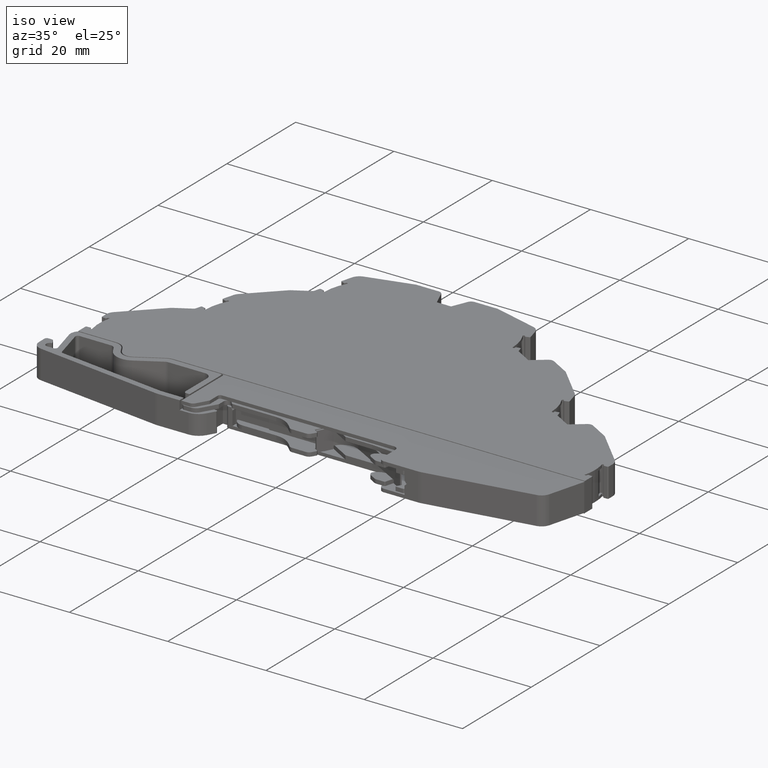
[diagram: clean part render]
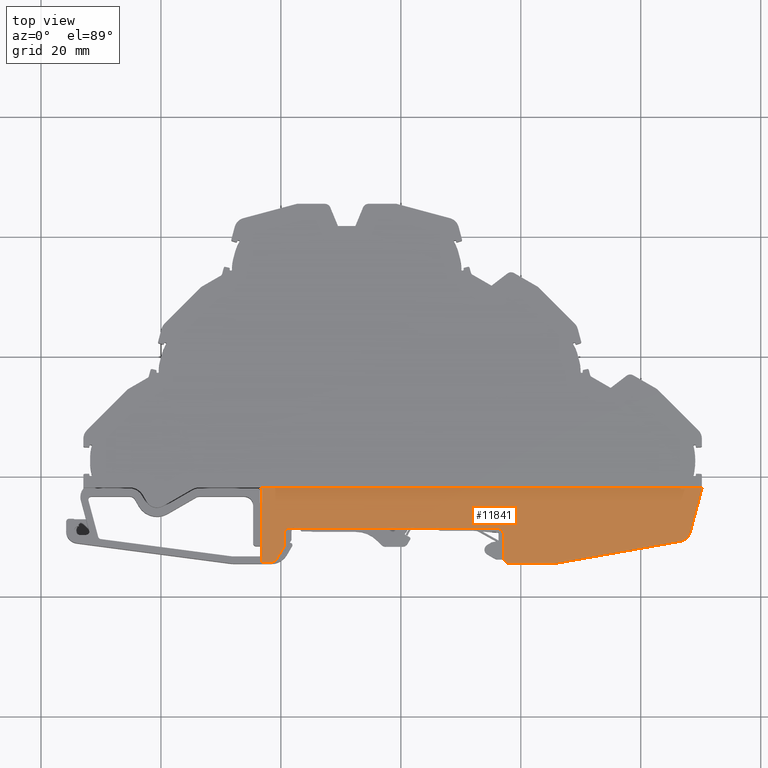
[diagram: tour spotlight — one face highlighted and labeled with its STEP entity id]
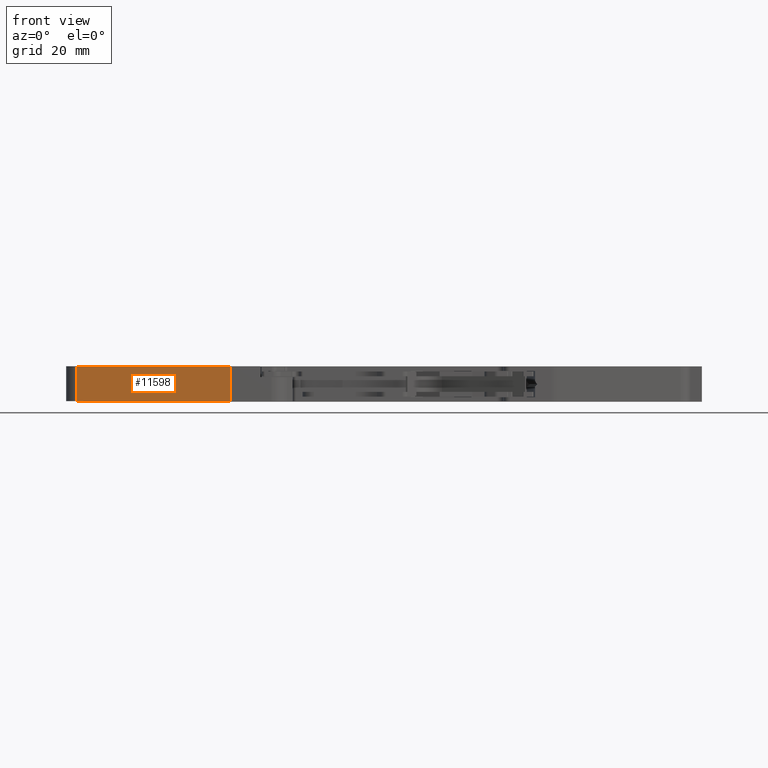
[diagram: tour spotlight — one face highlighted and labeled with its STEP entity id]
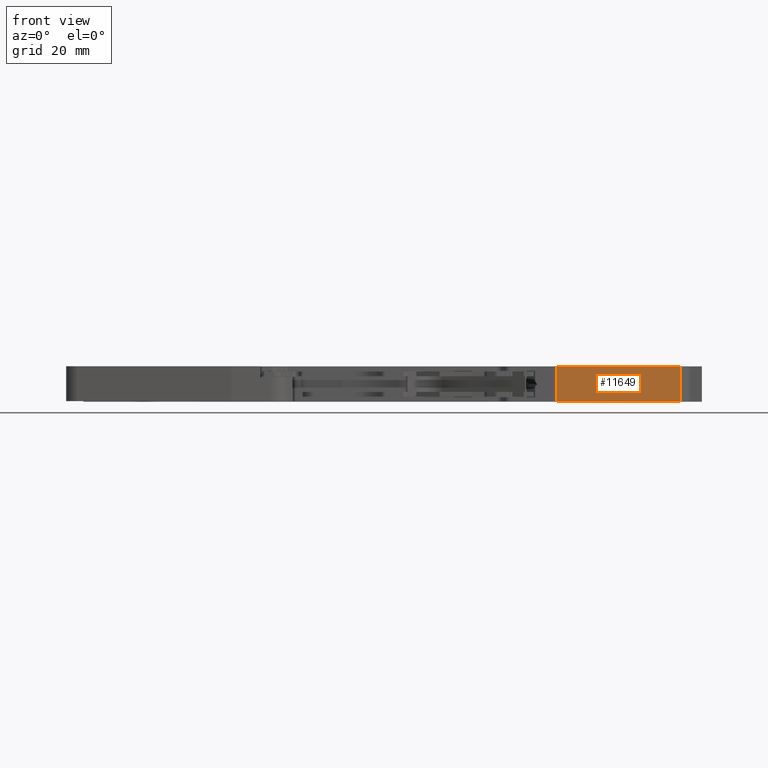
[diagram: tour spotlight — one face highlighted and labeled with its STEP entity id]
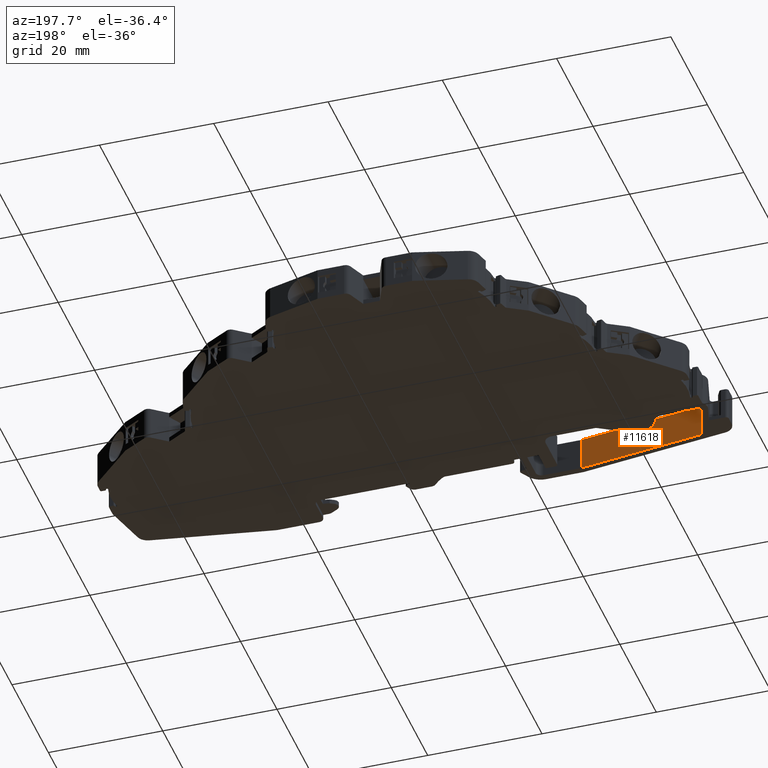
[diagram: tour spotlight — one face highlighted and labeled with its STEP entity id]
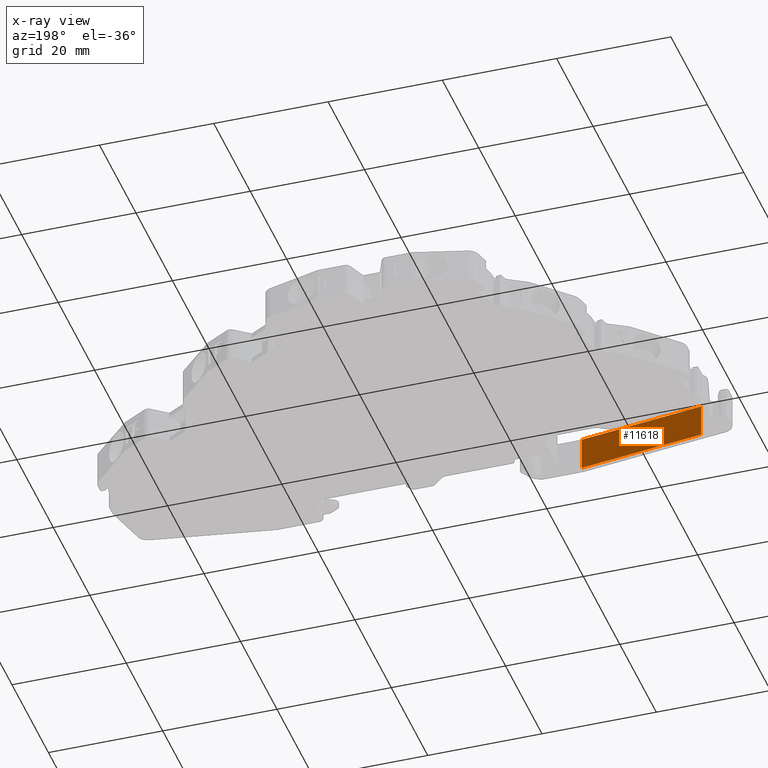
[diagram: x-ray of the same camera — body ghosted, this tour face saturated]
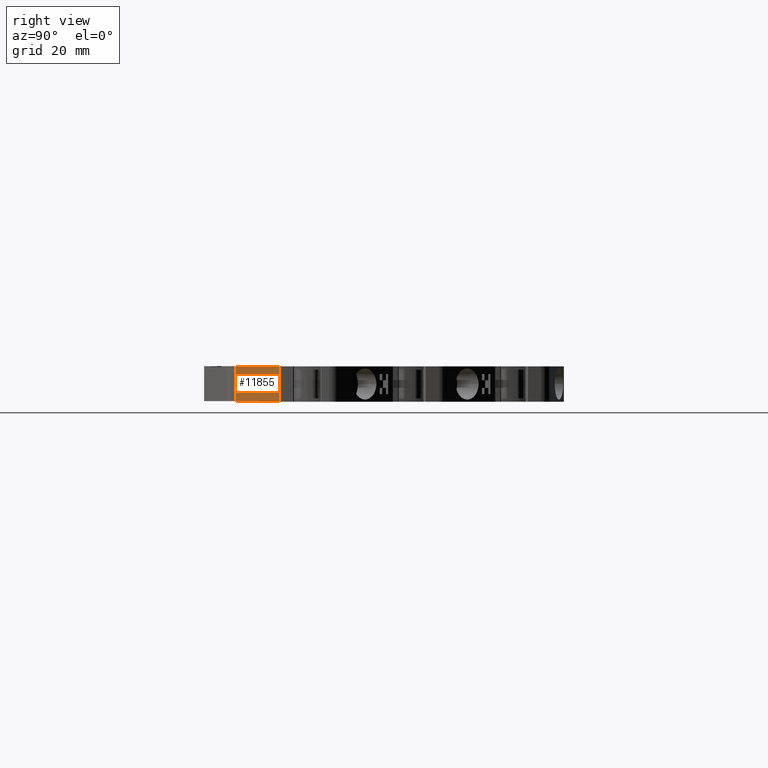
[diagram: tour spotlight — one face highlighted and labeled with its STEP entity id]
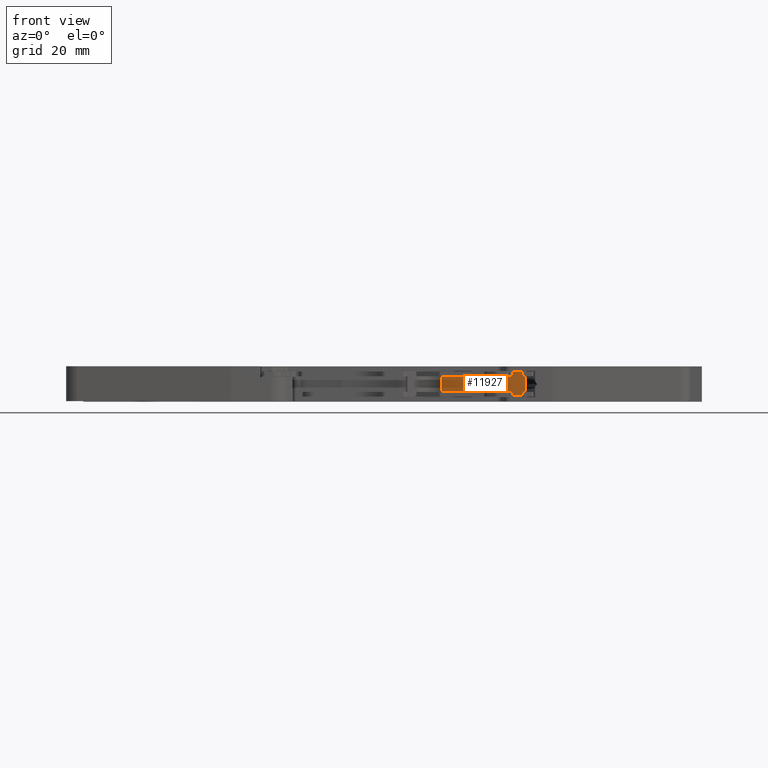
[diagram: tour spotlight — one face highlighted and labeled with its STEP entity id]
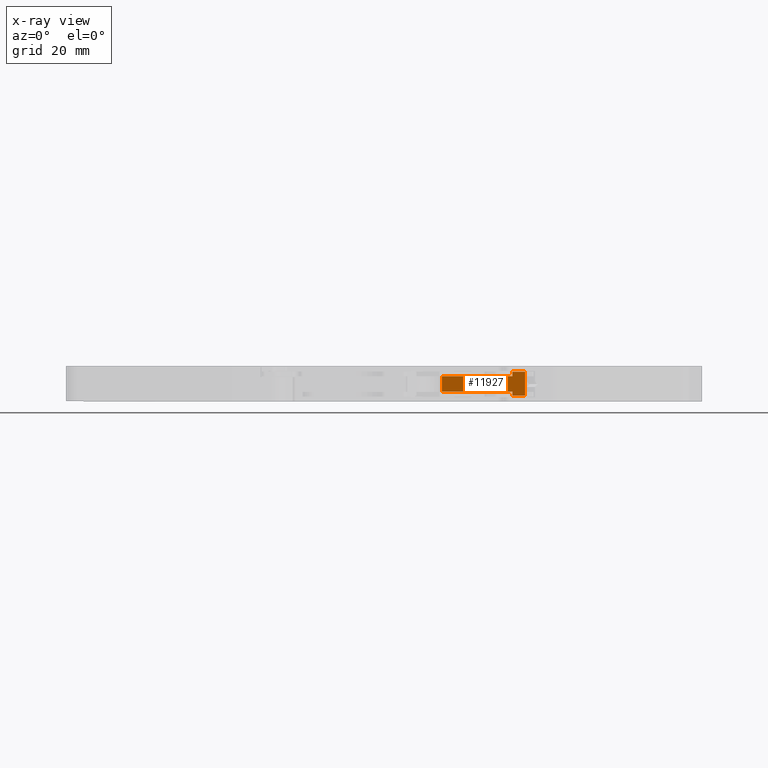
[diagram: x-ray of the same camera — body ghosted, this tour face saturated]
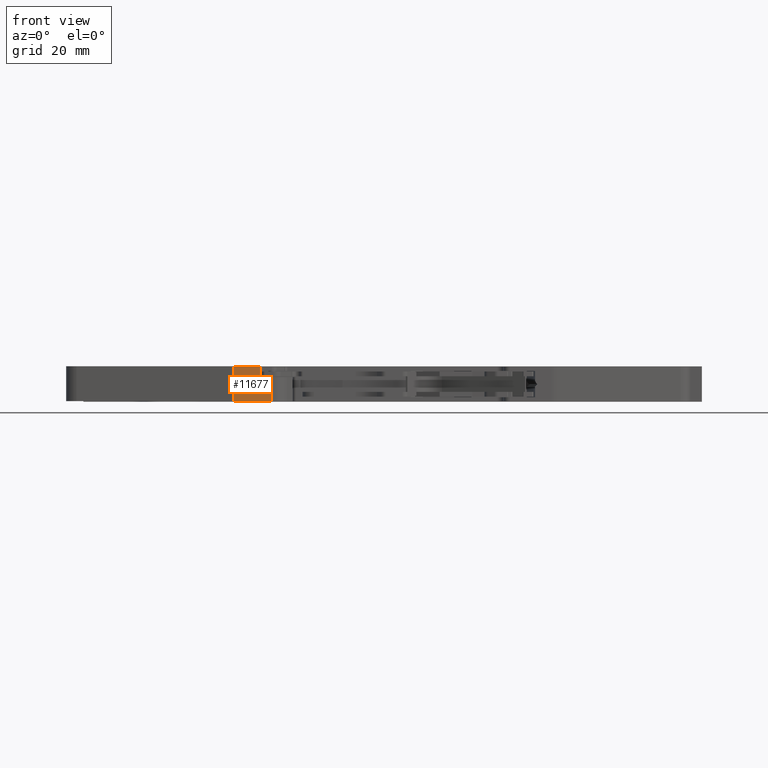
[diagram: tour spotlight — one face highlighted and labeled with its STEP entity id]
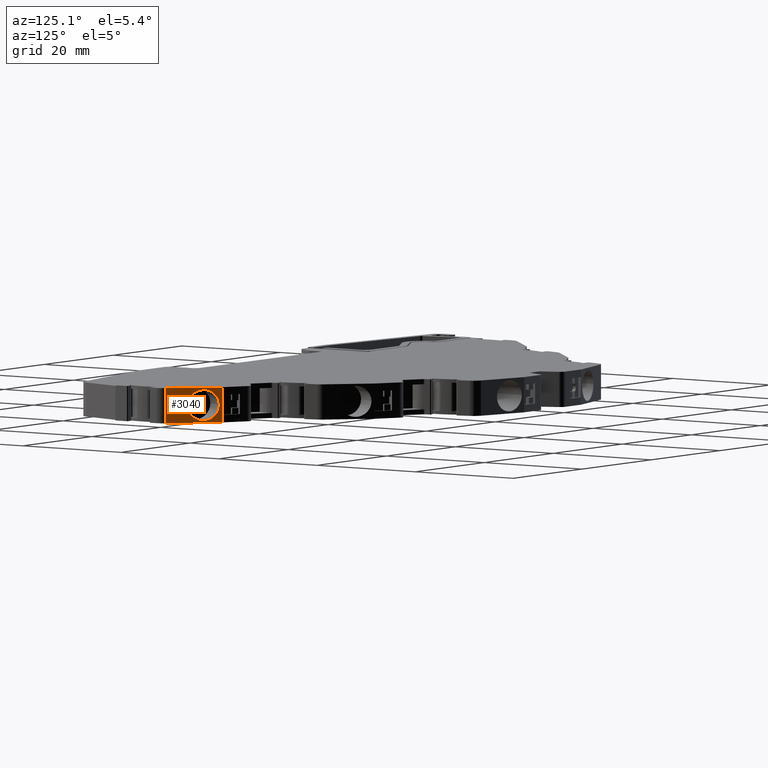
[diagram: tour spotlight — one face highlighted and labeled with its STEP entity id]
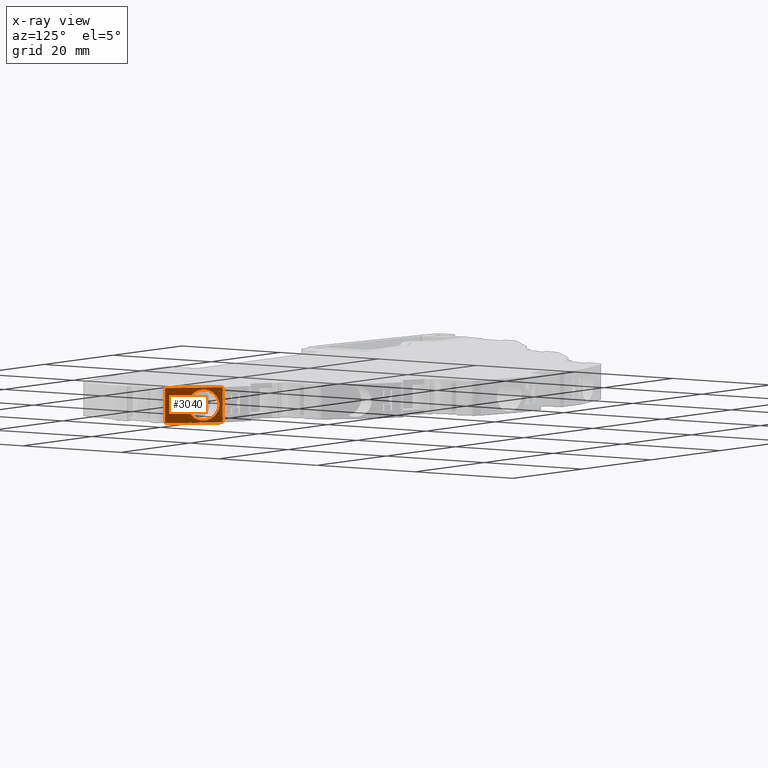
[diagram: x-ray of the same camera — body ghosted, this tour face saturated]
A machine part: a face-by-face anatomy tour. The part has 760 B-rep faces; the first image is the clean iso view, then the 8 largest visible faces are spotlighted one at a time (largest first), each with its STEP entity span.

Face 1 — top view, entity #11841. In plain terms, the highlighted planar face has unit normal (0, 0, 1).
Definition (entity closure, byte-faithful):
#105 = AXIS2_PLACEMENT_3D ( 'NONE', #25072, #25061, #25063 ) ;
#6359 = EDGE_LOOP ( 'NONE', ( #6712, #6676, #6727, #6773, #6752, #6741, #6755, #6744, #6782, #6749, #6777, #6754, #6756, #6757, #6761, #6778, #6762, #6794, #6774 ) ) ;
#6676 = ORIENTED_EDGE ( 'NONE', *, *, #10660, .T. ) ;
#6712 = ORIENTED_EDGE ( 'NONE', *, *, #10724, .T. ) ;
#6727 = ORIENTED_EDGE ( 'NONE', *, *, #10727, .T. ) ;
#6741 = ORIENTED_EDGE ( 'NONE', *, *, #10710, .T. ) ;
#6744 = ORIENTED_EDGE ( 'NONE', *, *, #10734, .F. ) ;
#6749 = ORIENTED_EDGE ( 'NONE', *, *, #10716, .F. ) ;
#6752 = ORIENTED_EDGE ( 'NONE', *, *, #10738, .T. ) ;
#6754 = ORIENTED_EDGE ( 'NONE', *, *, #10733, .F. ) ;
#6755 = ORIENTED_EDGE ( 'NONE', *, *, #10718, .F. ) ;
#6756 = ORIENTED_EDGE ( 'NONE', *, *, #10699, .F. ) ;
#6757 = ORIENTED_EDGE ( 'NONE', *, *, #10702, .F. ) ;
#6761 = ORIENTED_EDGE ( 'NONE', *, *, #10725, .F. ) ;
#6762 = ORIENTED_EDGE ( 'NONE', *, *, #10683, .F. ) ;
#6773 = ORIENTED_EDGE ( 'NONE', *, *, #10717, .T. ) ;
#6774 = ORIENTED_EDGE ( 'NONE', *, *, #10731, .T. ) ;
#6777 = ORIENTED_EDGE ( 'NONE', *, *, #10661, .F. ) ;
#6778 = ORIENTED_EDGE ( 'NONE', *, *, #10719, .F. ) ;
#6782 = ORIENTED_EDGE ( 'NONE', *, *, #10700, .F. ) ;
#6794 = ORIENTED_EDGE ( 'NONE', *, *, #10735, .F. ) ;
#7557 = VERTEX_POINT ( 'NONE', #18259 ) ;
#7564 = VERTEX_POINT ( 'NONE', #18314 ) ;
#7575 = VERTEX_POINT ( 'NONE', #18267 ) ;
#7587 = VERTEX_POINT ( 'NONE', #18322 ) ;
#7592 = VERTEX_POINT ( 'NONE', #18367 ) ;
#7610 = VERTEX_POINT ( 'NONE', #18359 ) ;
#7611 = VERTEX_POINT ( 'NONE', #18338 ) ;
#7615 = VERTEX_POINT ( 'NONE', #18366 ) ;
#7617 = VERTEX_POINT ( 'NONE', #18369 ) ;
#7620 = VERTEX_POINT ( 'NONE', #18337 ) ;
#7621 = VERTEX_POINT ( 'NONE', #18354 ) ;
#7622 = VERTEX_POINT ( 'NONE', #18346 ) ;
#7625 = VERTEX_POINT ( 'NONE', #18377 ) ;
#7638 = VERTEX_POINT ( 'NONE', #18317 ) ;
#7639 = VERTEX_POINT ( 'NONE', #18357 ) ;
#7640 = VERTEX_POINT ( 'NONE', #18358 ) ;
#7641 = VERTEX_POINT ( 'NONE', #18343 ) ;
#7644 = VERTEX_POINT ( 'NONE', #18323 ) ;
#7651 = VERTEX_POINT ( 'NONE', #18405 ) ;
#10660 = EDGE_CURVE ( 'NONE', #7615, #7641, #15715, .T. ) ;
#10661 = EDGE_CURVE ( 'NONE', #7621, #7644, #15728, .T. ) ;
#10683 = EDGE_CURVE ( 'NONE', #7638, #7620, #15803, .T. ) ;
#10699 = EDGE_CURVE ( 'NONE', #7587, #7610, #15808, .T. ) ;
#10700 = EDGE_CURVE ( 'NONE', #7639, #7611, #15818, .T. ) ;
#10702 = EDGE_CURVE ( 'NONE', #7575, #7587, #20078, .T. ) ;
#10710 = EDGE_CURVE ( 'NONE', #7622, #7640, #15788, .T. ) ;
#10716 = EDGE_CURVE ( 'NONE', #7644, #7639, #20144, .T. ) ;
#10717 = EDGE_CURVE ( 'NONE', #7651, #7625, #20148, .T. ) ;
#10718 = EDGE_CURVE ( 'NONE', #7564, #7640, #20112, .T. ) ;
#10719 = EDGE_CURVE ( 'NONE', #7620, #7557, #20134, .T. ) ;
#10724 = EDGE_CURVE ( 'NONE', #7617, #7615, #20141, .T. ) ;
#10725 = EDGE_CURVE ( 'NONE', #7557, #7575, #15759, .T. ) ;
#10727 = EDGE_CURVE ( 'NONE', #7641, #7651, #20139, .T. ) ;
#10731 = EDGE_CURVE ( 'NONE', #7592, #7617, #15860, .T. ) ;
#10733 = EDGE_CURVE ( 'NONE', #7610, #7621, #20182, .T. ) ;
#10734 = EDGE_CURVE ( 'NONE', #7611, #7564, #20183, .T. ) ;
#10735 = EDGE_CURVE ( 'NONE', #7592, #7638, #20155, .T. ) ;
#10738 = EDGE_CURVE ( 'NONE', #7625, #7622, #20195, .T. ) ;
#11841 = ADVANCED_FACE ( 'NONE', ( #25039 ), #25066, .T. ) ;
#15703 = AXIS2_PLACEMENT_3D ( 'NONE', #19969, #19946, #19967 ) ;
#15715 = CIRCLE ( 'NONE', #15754, 2.000000000000001800 ) ;
#15728 = CIRCLE ( 'NONE', #15703, 0.4999999999996673800 ) ;
#15754 = AXIS2_PLACEMENT_3D ( 'NONE', #19953, #19974, #19976 ) ;
#15758 = VECTOR ( 'NONE', #20109, 1000.000000000000100 ) ;
#15759 = CIRCLE ( 'NONE', #15782, 1.000000000000000900 ) ;
#15768 = AXIS2_PLACEMENT_3D ( 'NONE', #20081, #20096, #20077 ) ;
#15780 = VECTOR ( 'NONE', #20138, 1000.000000000000000 ) ;
#15782 = AXIS2_PLACEMENT_3D ( 'NONE', #20116, #20145, #20110 ) ;
#15787 = VECTOR ( 'NONE', #20063, 1000.000000000000100 ) ;
#15788 = CIRCLE ( 'NONE', #15794, 0.5000000000000004400 ) ;
#15794 = AXIS2_PLACEMENT_3D ( 'NONE', #20099, #20091, #20092 ) ;
#15797 = AXIS2_PLACEMENT_3D ( 'NONE', #19994, #19990, #19985 ) ;
#15798 = VECTOR ( 'NONE', #20118, 1000.000000000000000 ) ;
#15799 = VECTOR ( 'NONE', #20122, 1000.000000000000100 ) ;
#15803 = CIRCLE ( 'NONE', #15797, 1.000000000000000900 ) ;
#15808 = CIRCLE ( 'NONE', #15768, 0.5000000000002780000 ) ;
#15809 = AXIS2_PLACEMENT_3D ( 'NONE', #20104, #20073, #20066 ) ;
#15817 = VECTOR ( 'NONE', #20128, 1000.000000000000100 ) ;
#15818 = CIRCLE ( 'NONE', #15809, 0.9999999999988629100 ) ;
#15832 = AXIS2_PLACEMENT_3D ( 'NONE', #20171, #20156, #20176 ) ;
#15833 = VECTOR ( 'NONE', #20191, 1000.000000000000000 ) ;
#15845 = VECTOR ( 'NONE', #20162, 1000.000000000000000 ) ;
#15853 = VECTOR ( 'NONE', #20169, 1000.000000000000000 ) ;
#15860 = CIRCLE ( 'NONE', #15832, 4.999999998846815800 ) ;
#15861 = VECTOR ( 'NONE', #20120, 1000.000000000000200 ) ;
#15862 = VECTOR ( 'NONE', #20154, 1000.000000000000000 ) ;
#18259 = CARTESIAN_POINT ( 'NONE',  ( 277.1275590747290500, 10.27553869041482000, 5.755000000000003400 ) ) ;
#18267 = CARTESIAN_POINT ( 'NONE',  ( 276.1275589604314900, 11.27553869041491900, 5.755000000000003400 ) ) ;
#18314 = CARTESIAN_POINT ( 'NONE',  ( 236.7775514741830100, 5.703652428493939800, 5.755000000000003400 ) ) ;
#18317 = CARTESIAN_POINT ( 'NONE',  ( 278.1275590747290500, 5.453652283857850100, 5.755000000000003400 ) ) ;
#18322 = CARTESIAN_POINT ( 'NONE',  ( 241.1275487627449900, 11.27553468998899800, 5.755000000000003400 ) ) ;
#18323 = CARTESIAN_POINT ( 'NONE',  ( 240.5605615297525000, 8.343404873994749900, 5.755000000000003400 ) ) ;
#18337 = CARTESIAN_POINT ( 'NONE',  ( 277.1275590747290500, 6.453652283857839400, 5.755000000000003400 ) ) ;
#18338 = CARTESIAN_POINT ( 'NONE',  ( 238.4591495664645000, 5.703652428494120100, 5.755000000000003400 ) ) ;
#18343 = CARTESIAN_POINT ( 'NONE',  ( 308.2318994350256400, 10.63564999956065700, 5.754999999999999900 ) ) ;
#18346 = CARTESIAN_POINT ( 'NONE',  ( 236.2775535535379800, 18.15365339502465100, 5.755000000000000800 ) ) ;
#18354 = CARTESIAN_POINT ( 'NONE',  ( 240.6275488198945100, 8.593404860199450800, 5.755000000000003400 ) ) ;
#18357 = CARTESIAN_POINT ( 'NONE',  ( 239.3251749861780100, 6.203652456087311000, 5.755000000000003400 ) ) ;
#18358 = CARTESIAN_POINT ( 'NONE',  ( 236.7775535535379800, 17.65365330802234900, 5.755000000000003400 ) ) ;
#18359 = CARTESIAN_POINT ( 'NONE',  ( 240.6275488198945100, 10.77553468998793900, 5.755000000000003400 ) ) ;
#18366 = CARTESIAN_POINT ( 'NONE',  ( 306.6473301740173300, 9.183620067246197400, 5.754999999999999900 ) ) ;
#18367 = CARTESIAN_POINT ( 'NONE',  ( 285.0561968460980300, 5.453652506788160700, 5.754999999999999900 ) ) ;
#18369 = CARTESIAN_POINT ( 'NONE',  ( 285.9244377300924500, 5.529613790183530500, 5.754999999999999900 ) ) ;
#18377 = CARTESIAN_POINT ( 'NONE',  ( 310.1925644423634500, 18.15365339502484700, 5.754999999999996300 ) ) ;
#18405 = CARTESIAN_POINT ( 'NONE',  ( 310.1925644423635000, 17.95374747195260000, 5.754999999999999900 ) ) ;
#19946 = DIRECTION ( 'NONE',  ( -0.0000000000000000000, -0.0000000000000000000, -1.000000000000000000 ) ) ;
#19953 = CARTESIAN_POINT ( 'NONE',  ( 306.3000337061435500, 11.15323555342678000, 5.754999999999999900 ) ) ;
#19967 = DIRECTION ( 'NONE',  ( 1.000000000000000000, 0.0000000000000000000, 0.0000000000000000000 ) ) ;
#19969 = CARTESIAN_POINT ( 'NONE',  ( 240.1275488198950000, 8.593404860197610500, 5.755000000000003400 ) ) ;
#19974 = DIRECTION ( 'NONE',  ( 0.0000000000000000000, 0.0000000000000000000, 1.000000000000000000 ) ) ;
#19976 = DIRECTION ( 'NONE',  ( 1.000000000000000000, 0.0000000000000000000, 0.0000000000000000000 ) ) ;
#19985 = DIRECTION ( 'NONE',  ( 1.000000000000000000, 0.0000000000000000000, 0.0000000000000000000 ) ) ;
#19990 = DIRECTION ( 'NONE',  ( -0.0000000000000000000, -0.0000000000000000000, -1.000000000000000000 ) ) ;
#19994 = CARTESIAN_POINT ( 'NONE',  ( 278.1275590747290500, 6.453652283857839400, 5.755000000000003400 ) ) ;
#20063 = DIRECTION ( 'NONE',  ( -0.9999999999999934500, -1.142978428219282500E-007, 0.0000000000000000000 ) ) ;
#20066 = DIRECTION ( 'NONE',  ( 1.000000000000000000, -4.336808689946948900E-015, 0.0000000000000000000 ) ) ;
#20073 = DIRECTION ( 'NONE',  ( -0.0000000000000000000, -0.0000000000000000000, -1.000000000000000000 ) ) ;
#20077 = DIRECTION ( 'NONE',  ( 1.000000000000000000, 0.0000000000000000000, 0.0000000000000000000 ) ) ;
#20078 = LINE ( 'NONE', #20093, #15787 ) ;
#20081 = CARTESIAN_POINT ( 'NONE',  ( 241.1275488198945100, 10.77553468998874200, 5.755000000000003400 ) ) ;
#20091 = DIRECTION ( 'NONE',  ( -0.0000000000000000000, -0.0000000000000000000, -1.000000000000000000 ) ) ;
#20092 = DIRECTION ( 'NONE',  ( 1.000000000000000000, 0.0000000000000000000, 0.0000000000000000000 ) ) ;
#20093 = CARTESIAN_POINT ( 'NONE',  ( 276.1275589604314900, 11.27553869041491900, 5.755000000000003400 ) ) ;
#20096 = DIRECTION ( 'NONE',  ( 0.0000000000000000000, 0.0000000000000000000, 1.000000000000000000 ) ) ;
#20099 = CARTESIAN_POINT ( 'NONE',  ( 236.2775535535379800, 17.65365339502465100, 5.755000000000003400 ) ) ;
#20104 = CARTESIAN_POINT ( 'NONE',  ( 238.4591495664630000, 6.703652428492859800, 5.755000000000003400 ) ) ;
#20109 = DIRECTION ( 'NONE',  ( -0.4999999724063362000, -0.8660254197156472800, 0.0000000000000000000 ) ) ;
#20110 = DIRECTION ( 'NONE',  ( 1.000000000000000000, 0.0000000000000000000, 0.0000000000000000000 ) ) ;
#20112 = LINE ( 'NONE', #20149, #15799 ) ;
#20116 = CARTESIAN_POINT ( 'NONE',  ( 276.1275590747290500, 10.27553869041494000, 5.755000000000003400 ) ) ;
#20118 = DIRECTION ( 'NONE',  ( 0.0000000000000000000, 1.000000000000000000, 0.0000000000000000000 ) ) ;
#20120 = DIRECTION ( 'NONE',  ( 0.2587927769330645200, 0.9659328644410402100, 0.0000000000000000000 ) ) ;
#20122 = DIRECTION ( 'NONE',  ( 1.740045664224489600E-007, 0.9999999999999849000, 0.0000000000000000000 ) ) ;
#20124 = CARTESIAN_POINT ( 'NONE',  ( 310.1925644423635000, 17.95374747195260000, 5.754999999999999900 ) ) ;
#20128 = DIRECTION ( 'NONE',  ( 0.9848077430902924000, 0.1736482339369004000, 0.0000000000000000000 ) ) ;
#20131 = CARTESIAN_POINT ( 'NONE',  ( 277.1275590747290500, 6.453652283857839400, 5.755000000000003400 ) ) ;
#20132 = CARTESIAN_POINT ( 'NONE',  ( 305.5295232437430300, 8.986520480360878700, 5.754999999999999900 ) ) ;
#20134 = LINE ( 'NONE', #20131, #15780 ) ;
#20136 = CARTESIAN_POINT ( 'NONE',  ( 310.1925644423635000, -4.273463303793795000, 5.755000000000000800 ) ) ;
#20138 = DIRECTION ( 'NONE',  ( 0.0000000000000000000, 1.000000000000000000, 0.0000000000000000000 ) ) ;
#20139 = LINE ( 'NONE', #20124, #15861 ) ;
#20141 = LINE ( 'NONE', #20132, #15817 ) ;
#20144 = LINE ( 'NONE', #20147, #15758 ) ;
#20145 = DIRECTION ( 'NONE',  ( 0.0000000000000000000, 0.0000000000000000000, 1.000000000000000000 ) ) ;
#20147 = CARTESIAN_POINT ( 'NONE',  ( 240.5605615297525000, 8.343404873994749900, 5.755000000000003400 ) ) ;
#20148 = LINE ( 'NONE', #20136, #15798 ) ;
#20149 = CARTESIAN_POINT ( 'NONE',  ( 236.7775514741830100, 5.703652428493939800, 5.755000000000003400 ) ) ;
#20153 = CARTESIAN_POINT ( 'NONE',  ( 240.6275488198945100, 10.77553468998793900, 5.755000000000003400 ) ) ;
#20154 = DIRECTION ( 'NONE',  ( -1.271948865586938100E-014, -1.000000000000000000, 0.0000000000000000000 ) ) ;
#20155 = LINE ( 'NONE', #20166, #15833 ) ;
#20156 = DIRECTION ( 'NONE',  ( 0.0000000000000000000, 0.0000000000000000000, 1.000000000000000000 ) ) ;
#20160 = CARTESIAN_POINT ( 'NONE',  ( 238.4591495664645000, 5.703652428494120100, 5.755000000000003400 ) ) ;
#20162 = DIRECTION ( 'NONE',  ( -1.000000000000000000, -7.546894870103224200E-016, 0.0000000000000000000 ) ) ;
#20166 = CARTESIAN_POINT ( 'NONE',  ( 282.1775819742595100, 5.453652299454519800, 5.755000000000003400 ) ) ;
#20169 = DIRECTION ( 'NONE',  ( -1.000000000000000000, -1.067697927273589900E-013, 0.0000000000000000000 ) ) ;
#20171 = CARTESIAN_POINT ( 'NONE',  ( 285.0561965604079500, 10.45365250563500000, 5.754999999999999900 ) ) ;
#20176 = DIRECTION ( 'NONE',  ( 1.000000000000000000, 0.0000000000000000000, 0.0000000000000000000 ) ) ;
#20181 = CARTESIAN_POINT ( 'NONE',  ( 259.6925597848061800, 18.15365339502481100, 5.754999999999996300 ) ) ;
#20182 = LINE ( 'NONE', #20153, #15862 ) ;
#20183 = LINE ( 'NONE', #20160, #15853 ) ;
#20191 = DIRECTION ( 'NONE',  ( -1.000000000000000000, -3.851004590712635100E-009, 0.0000000000000000000 ) ) ;
#20195 = LINE ( 'NONE', #20181, #15845 ) ;
#25039 = FACE_OUTER_BOUND ( 'NONE', #6359, .T. ) ;
#25061 = DIRECTION ( 'NONE',  ( 0.0000000000000000000, 0.0000000000000000000, 1.000000000000000000 ) ) ;
#25063 = DIRECTION ( 'NONE',  ( 1.000000000000000000, 0.0000000000000000000, 0.0000000000000000000 ) ) ;
#25066 = PLANE ( 'NONE',  #105 ) ;
#25072 = CARTESIAN_POINT ( 'NONE',  ( 230.9558932644780200, -4.273463303793795000, 5.755000000000000800 ) ) ;

Face 2 — front view, entity #11598. In plain terms, the highlighted planar face has unit normal (-0.1305, -0.9914, 0).
Definition (entity closure, byte-faithful):
#4828 = EDGE_LOOP ( 'NONE', ( #12533, #12507, #12574, #12561 ) ) ;
#7473 = VERTEX_POINT ( 'NONE', #18220 ) ;
#7594 = VERTEX_POINT ( 'NONE', #18364 ) ;
#7838 = VERTEX_POINT ( 'NONE', #18623 ) ;
#7858 = VERTEX_POINT ( 'NONE', #18632 ) ;
#10646 = EDGE_CURVE ( 'NONE', #7473, #7594, #19891, .T. ) ;
#10971 = EDGE_CURVE ( 'NONE', #7858, #7838, #22024, .T. ) ;
#11375 = EDGE_CURVE ( 'NONE', #7594, #7838, #23218, .T. ) ;
#11398 = EDGE_CURVE ( 'NONE', #7858, #7473, #23286, .T. ) ;
#11598 = ADVANCED_FACE ( 'NONE', ( #24037 ), #24032, .T. ) ;
#12507 = ORIENTED_EDGE ( 'NONE', *, *, #11398, .T. ) ;
#12533 = ORIENTED_EDGE ( 'NONE', *, *, #10971, .F. ) ;
#12561 = ORIENTED_EDGE ( 'NONE', *, *, #11375, .T. ) ;
#12574 = ORIENTED_EDGE ( 'NONE', *, *, #10646, .T. ) ;
#15744 = VECTOR ( 'NONE', #19931, 1000.000000000000100 ) ;
#18220 = CARTESIAN_POINT ( 'NONE',  ( 205.9276064086141400, 8.863850596621729100, 0.05499999999999949400 ) ) ;
#18364 = CARTESIAN_POINT ( 'NONE',  ( 231.5576974045550000, 5.489585722834148900, 0.05499999999999949400 ) ) ;
#18623 = CARTESIAN_POINT ( 'NONE',  ( 231.5576974045550000, 5.489585722834148900, 5.864999999999994900 ) ) ;
#18632 = CARTESIAN_POINT ( 'NONE',  ( 205.9276064086141400, 8.863850596621729100, 5.864999999999994900 ) ) ;
#19891 = LINE ( 'NONE', #19917, #15744 ) ;
#19917 = CARTESIAN_POINT ( 'NONE',  ( 266.6560009584955000, 0.8688072468486799400, 0.05499999999999949400 ) ) ;
#19931 = DIRECTION ( 'NONE',  ( 0.9914448644735828200, -0.1305261686749406000, 0.0000000000000000000 ) ) ;
#20640 = VECTOR ( 'NONE', #22089, 1000.000000000000100 ) ;
#21150 = VECTOR ( 'NONE', #23299, 1000.000000000000000 ) ;
#21167 = VECTOR ( 'NONE', #23266, 1000.000000000000000 ) ;
#21392 = AXIS2_PLACEMENT_3D ( 'NONE', #24053, #24018, #24039 ) ;
#22024 = LINE ( 'NONE', #22030, #20640 ) ;
#22030 = CARTESIAN_POINT ( 'NONE',  ( 265.6091454494504100, 1.006628363935682600, 5.864999999999995800 ) ) ;
#22089 = DIRECTION ( 'NONE',  ( 0.9914448644735828200, -0.1305261686749406000, 0.0000000000000000000 ) ) ;
#23218 = LINE ( 'NONE', #23261, #21167 ) ;
#23261 = CARTESIAN_POINT ( 'NONE',  ( 231.5576974045550000, 5.489585722834148900, -105.5397785478540100 ) ) ;
#23266 = DIRECTION ( 'NONE',  ( 0.0000000000000000000, 0.0000000000000000000, 1.000000000000000000 ) ) ;
#23286 = LINE ( 'NONE', #23329, #21150 ) ;
#23299 = DIRECTION ( 'NONE',  ( 0.0000000000000000000, 0.0000000000000000000, -1.000000000000000000 ) ) ;
#23329 = CARTESIAN_POINT ( 'NONE',  ( 205.9276064086141400, 8.863850596621729100, -105.5397785478540100 ) ) ;
#24018 = DIRECTION ( 'NONE',  ( -0.1305261686749408000, -0.9914448644735828200, 0.0000000000000000000 ) ) ;
#24032 = PLANE ( 'NONE',  #21392 ) ;
#24037 = FACE_OUTER_BOUND ( 'NONE', #4828, .T. ) ;
#24039 = DIRECTION ( 'NONE',  ( 0.9914448644735827100, -0.1305261686749407700, 0.0000000000000000000 ) ) ;
#24053 = CARTESIAN_POINT ( 'NONE',  ( 266.6560009584955000, 0.8688072468486799400, -105.5397785478540100 ) ) ;

Face 3 — front view, entity #11649. In plain terms, the highlighted planar face has unit normal (-0.1736, 0.9848, 0).
Definition (entity closure, byte-faithful):
#4938 = EDGE_LOOP ( 'NONE', ( #12617, #12620, #12639, #12703 ) ) ;
#7554 = VERTEX_POINT ( 'NONE', #18285 ) ;
#7570 = VERTEX_POINT ( 'NONE', #18251 ) ;
#7615 = VERTEX_POINT ( 'NONE', #18366 ) ;
#7617 = VERTEX_POINT ( 'NONE', #18369 ) ;
#10663 = EDGE_CURVE ( 'NONE', #7554, #7570, #19965, .T. ) ;
#10724 = EDGE_CURVE ( 'NONE', #7617, #7615, #20141, .T. ) ;
#11456 = EDGE_CURVE ( 'NONE', #7570, #7615, #23553, .T. ) ;
#11476 = EDGE_CURVE ( 'NONE', #7617, #7554, #23605, .T. ) ;
#11649 = ADVANCED_FACE ( 'NONE', ( #24220 ), #24219, .F. ) ;
#12617 = ORIENTED_EDGE ( 'NONE', *, *, #10663, .T. ) ;
#12620 = ORIENTED_EDGE ( 'NONE', *, *, #11456, .T. ) ;
#12639 = ORIENTED_EDGE ( 'NONE', *, *, #10724, .F. ) ;
#12703 = ORIENTED_EDGE ( 'NONE', *, *, #11476, .T. ) ;
#15729 = VECTOR ( 'NONE', #19942, 1000.000000000000100 ) ;
#15817 = VECTOR ( 'NONE', #20128, 1000.000000000000100 ) ;
#18251 = CARTESIAN_POINT ( 'NONE',  ( 306.6473301740173300, 9.183620067246197400, 0.05499999999999949400 ) ) ;
#18285 = CARTESIAN_POINT ( 'NONE',  ( 285.9244377300924500, 5.529613790183530500, 0.05499999999999949400 ) ) ;
#18366 = CARTESIAN_POINT ( 'NONE',  ( 306.6473301740173300, 9.183620067246197400, 5.754999999999999900 ) ) ;
#18369 = CARTESIAN_POINT ( 'NONE',  ( 285.9244377300924500, 5.529613790183530500, 5.754999999999999900 ) ) ;
#19940 = CARTESIAN_POINT ( 'NONE',  ( 8.708948686352020000, -43.35097273053618500, 0.05499999999999898700 ) ) ;
#19942 = DIRECTION ( 'NONE',  ( 0.9848077430902924000, 0.1736482339369004000, 0.0000000000000000000 ) ) ;
#19965 = LINE ( 'NONE', #19940, #15729 ) ;
#20128 = DIRECTION ( 'NONE',  ( 0.9848077430902924000, 0.1736482339369004000, 0.0000000000000000000 ) ) ;
#20132 = CARTESIAN_POINT ( 'NONE',  ( 305.5295232437430300, 8.986520480360878700, 5.754999999999999900 ) ) ;
#20141 = LINE ( 'NONE', #20132, #15817 ) ;
#21244 = VECTOR ( 'NONE', #23561, 1000.000000000000000 ) ;
#21311 = VECTOR ( 'NONE', #23598, 1000.000000000000000 ) ;
#21472 = AXIS2_PLACEMENT_3D ( 'NONE', #24275, #24306, #24313 ) ;
#23530 = CARTESIAN_POINT ( 'NONE',  ( 306.6473301740173300, 9.183620067246197400, 35.49247827905775000 ) ) ;
#23553 = LINE ( 'NONE', #23530, #21244 ) ;
#23561 = DIRECTION ( 'NONE',  ( -0.0000000000000000000, -0.0000000000000000000, 1.000000000000000000 ) ) ;
#23590 = CARTESIAN_POINT ( 'NONE',  ( 285.9244377300924500, 5.529613790183530500, 35.49247827905775000 ) ) ;
#23598 = DIRECTION ( 'NONE',  ( 0.0000000000000000000, 0.0000000000000000000, -1.000000000000000000 ) ) ;
#23605 = LINE ( 'NONE', #23590, #21311 ) ;
#24219 = PLANE ( 'NONE',  #21472 ) ;
#24220 = FACE_OUTER_BOUND ( 'NONE', #4938, .T. ) ;
#24275 = CARTESIAN_POINT ( 'NONE',  ( 305.5295232437430300, 8.986520480360878700, 35.49247827905775000 ) ) ;
#24306 = DIRECTION ( 'NONE',  ( -0.1736482339369004300, 0.9848077430902925100, 0.0000000000000000000 ) ) ;
#24313 = DIRECTION ( 'NONE',  ( -0.9848077430902924000, -0.1736482339369004000, 0.0000000000000000000 ) ) ;

Face 4 — auxiliary view, entity #11618. An x-ray twin of the same camera follows (body ghosted, this face saturated) — the face is partly hidden behind the body. In plain terms, the highlighted planar face has unit normal (0.1305, 0.9914, 0).
Definition (entity closure, byte-faithful):
#4887 = EDGE_LOOP ( 'NONE', ( #12508, #12577, #12495, #12572 ) ) ;
#7560 = VERTEX_POINT ( 'NONE', #18298 ) ;
#7616 = VERTEX_POINT ( 'NONE', #18368 ) ;
#7849 = VERTEX_POINT ( 'NONE', #18606 ) ;
#7873 = VERTEX_POINT ( 'NONE', #18584 ) ;
#10654 = EDGE_CURVE ( 'NONE', #7560, #7616, #19907, .T. ) ;
#10941 = EDGE_CURVE ( 'NONE', #7849, #7873, #21947, .T. ) ;
#11371 = EDGE_CURVE ( 'NONE', #7560, #7873, #23212, .T. ) ;
#11394 = EDGE_CURVE ( 'NONE', #7616, #7849, #23314, .T. ) ;
#11618 = ADVANCED_FACE ( 'NONE', ( #24155 ), #24128, .T. ) ;
#12495 = ORIENTED_EDGE ( 'NONE', *, *, #10941, .F. ) ;
#12508 = ORIENTED_EDGE ( 'NONE', *, *, #10654, .F. ) ;
#12572 = ORIENTED_EDGE ( 'NONE', *, *, #11394, .F. ) ;
#12577 = ORIENTED_EDGE ( 'NONE', *, *, #11371, .T. ) ;
#15756 = VECTOR ( 'NONE', #19892, 999.9999999999998900 ) ;
#18298 = CARTESIAN_POINT ( 'NONE',  ( 209.9609562340940600, 9.543205107083123200, 0.05499999999999949400 ) ) ;
#18368 = CARTESIAN_POINT ( 'NONE',  ( 231.7143380641940100, 6.679318845271971000, 0.05499999999999949400 ) ) ;
#18584 = CARTESIAN_POINT ( 'NONE',  ( 209.9609562340940600, 9.543205107083123200, 5.864999999999994900 ) ) ;
#18606 = CARTESIAN_POINT ( 'NONE',  ( 231.7143380641940100, 6.679318845271971000, 5.864999999999994900 ) ) ;
#19892 = DIRECTION ( 'NONE',  ( 0.9914448660161236900, -0.1305261569581771800, 0.0000000000000000000 ) ) ;
#19899 = CARTESIAN_POINT ( 'NONE',  ( 5.858957915854428900, 36.41373556331820500, 0.05499999999999898700 ) ) ;
#19907 = LINE ( 'NONE', #19899, #15756 ) ;
#20598 = VECTOR ( 'NONE', #21962, 999.9999999999998900 ) ;
#21142 = VECTOR ( 'NONE', #23259, 1000.000000000000000 ) ;
#21195 = VECTOR ( 'NONE', #23306, 1000.000000000000000 ) ;
#21431 = AXIS2_PLACEMENT_3D ( 'NONE', #24112, #24146, #24117 ) ;
#21947 = LINE ( 'NONE', #21954, #20598 ) ;
#21954 = CARTESIAN_POINT ( 'NONE',  ( 265.7657761329153300, 2.196363209151605700, 5.864999999999995800 ) ) ;
#21962 = DIRECTION ( 'NONE',  ( -0.9914448660161236900, 0.1305261569581771800, 0.0000000000000000000 ) ) ;
#23212 = LINE ( 'NONE', #23213, #21142 ) ;
#23213 = CARTESIAN_POINT ( 'NONE',  ( 209.9609562340940600, 9.543205107083123200, -29.19000000000000800 ) ) ;
#23259 = DIRECTION ( 'NONE',  ( 0.0000000000000000000, 0.0000000000000000000, 1.000000000000000000 ) ) ;
#23306 = DIRECTION ( 'NONE',  ( 0.0000000000000000000, 0.0000000000000000000, 1.000000000000000000 ) ) ;
#23314 = LINE ( 'NONE', #23320, #21195 ) ;
#23320 = CARTESIAN_POINT ( 'NONE',  ( 231.7143380641940100, 6.679318845271971000, -29.19000000000000800 ) ) ;
#24112 = CARTESIAN_POINT ( 'NONE',  ( 267.5459603035130300, 1.961997581338555100, -29.19000000000000800 ) ) ;
#24117 = DIRECTION ( 'NONE',  ( -0.9914448660161235800, 0.1305261569581771500, 0.0000000000000000000 ) ) ;
#24128 = PLANE ( 'NONE',  #21431 ) ;
#24146 = DIRECTION ( 'NONE',  ( 0.1305261569581771500, 0.9914448660161235800, 0.0000000000000000000 ) ) ;
#24155 = FACE_OUTER_BOUND ( 'NONE', #4887, .T. ) ;

Face 5 — right view, entity #11855. In plain terms, the highlighted planar face has unit normal (-0.9659, 0.2588, 0).
Definition (entity closure, byte-faithful):
#141 = AXIS2_PLACEMENT_3D ( 'NONE', #25092, #25115, #25093 ) ;
#6322 = EDGE_LOOP ( 'NONE', ( #6784, #6701, #6702, #6781, #6706, #6673 ) ) ;
#6673 = ORIENTED_EDGE ( 'NONE', *, *, #10697, .F. ) ;
#6701 = ORIENTED_EDGE ( 'NONE', *, *, #10722, .T. ) ;
#6702 = ORIENTED_EDGE ( 'NONE', *, *, #10664, .T. ) ;
#6706 = ORIENTED_EDGE ( 'NONE', *, *, #10657, .F. ) ;
#6781 = ORIENTED_EDGE ( 'NONE', *, *, #10682, .F. ) ;
#6784 = ORIENTED_EDGE ( 'NONE', *, *, #10727, .F. ) ;
#7538 = VERTEX_POINT ( 'NONE', #18290 ) ;
#7567 = VERTEX_POINT ( 'NONE', #18302 ) ;
#7612 = VERTEX_POINT ( 'NONE', #18341 ) ;
#7628 = VERTEX_POINT ( 'NONE', #18339 ) ;
#7641 = VERTEX_POINT ( 'NONE', #18343 ) ;
#7651 = VERTEX_POINT ( 'NONE', #18405 ) ;
#10657 = EDGE_CURVE ( 'NONE', #7612, #7628, #19893, .T. ) ;
#10664 = EDGE_CURVE ( 'NONE', #7567, #7538, #19936, .T. ) ;
#10682 = EDGE_CURVE ( 'NONE', #7628, #7538, #19989, .T. ) ;
#10697 = EDGE_CURVE ( 'NONE', #7651, #7612, #20038, .T. ) ;
#10722 = EDGE_CURVE ( 'NONE', #7641, #7567, #20107, .T. ) ;
#10727 = EDGE_CURVE ( 'NONE', #7641, #7651, #20139, .T. ) ;
#11855 = ADVANCED_FACE ( 'NONE', ( #25089 ), #25090, .F. ) ;
#15711 = VECTOR ( 'NONE', #19964, 1000.000000000000200 ) ;
#15720 = VECTOR ( 'NONE', #20009, 1000.000000000000000 ) ;
#15730 = VECTOR ( 'NONE', #19949, 1000.000000000000200 ) ;
#15770 = VECTOR ( 'NONE', #20020, 1000.000000000000000 ) ;
#15815 = VECTOR ( 'NONE', #20123, 1000.000000000000000 ) ;
#15861 = VECTOR ( 'NONE', #20120, 1000.000000000000200 ) ;
#18290 = CARTESIAN_POINT ( 'NONE',  ( 310.1925392372684800, 17.95365339502485100, 0.05499999999999898000 ) ) ;
#18302 = CARTESIAN_POINT ( 'NONE',  ( 308.2318994350256400, 10.63564999956065700, 0.05499999999999949400 ) ) ;
#18339 = CARTESIAN_POINT ( 'NONE',  ( 310.1925392372684800, 17.95365339502485100, -0.04500000000000388400 ) ) ;
#18341 = CARTESIAN_POINT ( 'NONE',  ( 310.1925644423635000, 17.95374747195260000, -0.04500000000000337100 ) ) ;
#18343 = CARTESIAN_POINT ( 'NONE',  ( 308.2318994350256400, 10.63564999956065700, 5.754999999999999900 ) ) ;
#18405 = CARTESIAN_POINT ( 'NONE',  ( 310.1925644423635000, 17.95374747195260000, 5.754999999999999900 ) ) ;
#19893 = LINE ( 'NONE', #19904, #15711 ) ;
#19904 = CARTESIAN_POINT ( 'NONE',  ( 312.4056949663813600, 26.21416158312163300, -0.04500000000000387700 ) ) ;
#19936 = LINE ( 'NONE', #19958, #15730 ) ;
#19949 = DIRECTION ( 'NONE',  ( 0.2587927769330645200, 0.9659328644410402100, 0.0000000000000000000 ) ) ;
#19958 = CARTESIAN_POINT ( 'NONE',  ( 285.0011332220738600, -76.07218171492525000, 0.05499999999999898700 ) ) ;
#19964 = DIRECTION ( 'NONE',  ( -0.2587927769330645200, -0.9659328644410402100, 0.0000000000000000000 ) ) ;
#19989 = LINE ( 'NONE', #20010, #15720 ) ;
#20009 = DIRECTION ( 'NONE',  ( 0.0000000000000000000, 0.0000000000000000000, 1.000000000000000000 ) ) ;
#20010 = CARTESIAN_POINT ( 'NONE',  ( 310.1925392372684800, 17.95365339502485100, 0.1599999999999934800 ) ) ;
#20020 = DIRECTION ( 'NONE',  ( 0.0000000000000000000, 0.0000000000000000000, -1.000000000000000000 ) ) ;
#20038 = LINE ( 'NONE', #20049, #15770 ) ;
#20049 = CARTESIAN_POINT ( 'NONE',  ( 310.1925644423635000, 17.95374747195260000, 35.49247827905775000 ) ) ;
#20107 = LINE ( 'NONE', #20108, #15815 ) ;
#20108 = CARTESIAN_POINT ( 'NONE',  ( 308.2318994350256400, 10.63564999956065700, 35.49247827905775000 ) ) ;
#20120 = DIRECTION ( 'NONE',  ( 0.2587927769330645200, 0.9659328644410402100, 0.0000000000000000000 ) ) ;
#20123 = DIRECTION ( 'NONE',  ( 0.0000000000000000000, 0.0000000000000000000, -1.000000000000000000 ) ) ;
#20124 = CARTESIAN_POINT ( 'NONE',  ( 310.1925644423635000, 17.95374747195260000, 5.754999999999999900 ) ) ;
#20139 = LINE ( 'NONE', #20124, #15861 ) ;
#25089 = FACE_OUTER_BOUND ( 'NONE', #6322, .T. ) ;
#25090 = PLANE ( 'NONE',  #141 ) ;
#25092 = CARTESIAN_POINT ( 'NONE',  ( 310.1925644423635000, 17.95374747195260000, 35.49247827905775000 ) ) ;
#25093 = DIRECTION ( 'NONE',  ( -0.2587927769330646300, -0.9659328644410403200, 0.0000000000000000000 ) ) ;
#25115 = DIRECTION ( 'NONE',  ( -0.9659328644410403200, 0.2587927769330646300, 0.0000000000000000000 ) ) ;

Face 6 — front view, entity #11927. An x-ray twin of the same camera follows (body ghosted, this face saturated) — the face is partly hidden behind the body. In plain terms, the highlighted planar face has unit normal (0.4848, 0.8746, 0).
Definition (entity closure, byte-faithful):
#169 = AXIS2_PLACEMENT_3D ( 'NONE', #25459, #25462, #25463 ) ;
#4999 = EDGE_CURVE ( 'NONE', #8014, #7988, #16265, .T. ) ;
#5004 = EDGE_CURVE ( 'NONE', #8010, #7997, #16263, .T. ) ;
#5012 = EDGE_CURVE ( 'NONE', #7994, #7988, #16291, .T. ) ;
#5038 = EDGE_CURVE ( 'NONE', #7987, #7980, #16375, .T. ) ;
#5043 = EDGE_CURVE ( 'NONE', #7968, #7341, #16409, .T. ) ;
#5046 = EDGE_CURVE ( 'NONE', #7980, #7994, #16401, .T. ) ;
#5058 = EDGE_CURVE ( 'NONE', #7902, #7968, #16447, .T. ) ;
#5061 = EDGE_CURVE ( 'NONE', #7315, #8026, #16452, .T. ) ;
#5064 = EDGE_CURVE ( 'NONE', #8010, #7987, #16481, .T. ) ;
#5079 = EDGE_CURVE ( 'NONE', #8014, #8015, #16530, .T. ) ;
#5080 = EDGE_CURVE ( 'NONE', #8015, #7920, #16479, .T. ) ;
#5087 = EDGE_CURVE ( 'NONE', #7920, #7902, #16524, .T. ) ;
#5091 = EDGE_CURVE ( 'NONE', #8026, #7997, #16537, .T. ) ;
#6406 = EDGE_LOOP ( 'NONE', ( #9967, #9920, #9969, #9929, #9970, #9951, #9934, #9974, #9971, #9976, #9879, #9925, #9881, #9865 ) ) ;
#7315 = VERTEX_POINT ( 'NONE', #18015 ) ;
#7341 = VERTEX_POINT ( 'NONE', #18073 ) ;
#7902 = VERTEX_POINT ( 'NONE', #18659 ) ;
#7920 = VERTEX_POINT ( 'NONE', #18695 ) ;
#7968 = VERTEX_POINT ( 'NONE', #18759 ) ;
#7980 = VERTEX_POINT ( 'NONE', #18750 ) ;
#7987 = VERTEX_POINT ( 'NONE', #18744 ) ;
#7988 = VERTEX_POINT ( 'NONE', #18713 ) ;
#7994 = VERTEX_POINT ( 'NONE', #18732 ) ;
#7997 = VERTEX_POINT ( 'NONE', #18705 ) ;
#8010 = VERTEX_POINT ( 'NONE', #18730 ) ;
#8014 = VERTEX_POINT ( 'NONE', #18755 ) ;
#8015 = VERTEX_POINT ( 'NONE', #18699 ) ;
#8026 = VERTEX_POINT ( 'NONE', #18738 ) ;
#9865 = ORIENTED_EDGE ( 'NONE', *, *, #11766, .F. ) ;
#9879 = ORIENTED_EDGE ( 'NONE', *, *, #5004, .T. ) ;
#9881 = ORIENTED_EDGE ( 'NONE', *, *, #5061, .F. ) ;
#9920 = ORIENTED_EDGE ( 'NONE', *, *, #5058, .F. ) ;
#9925 = ORIENTED_EDGE ( 'NONE', *, *, #5091, .F. ) ;
#9929 = ORIENTED_EDGE ( 'NONE', *, *, #5080, .F. ) ;
#9934 = ORIENTED_EDGE ( 'NONE', *, *, #5012, .F. ) ;
#9951 = ORIENTED_EDGE ( 'NONE', *, *, #4999, .T. ) ;
#9967 = ORIENTED_EDGE ( 'NONE', *, *, #5043, .F. ) ;
#9969 = ORIENTED_EDGE ( 'NONE', *, *, #5087, .F. ) ;
#9970 = ORIENTED_EDGE ( 'NONE', *, *, #5079, .F. ) ;
#9971 = ORIENTED_EDGE ( 'NONE', *, *, #5038, .F. ) ;
#9974 = ORIENTED_EDGE ( 'NONE', *, *, #5046, .F. ) ;
#9976 = ORIENTED_EDGE ( 'NONE', *, *, #5064, .F. ) ;
#11766 = EDGE_CURVE ( 'NONE', #7341, #7315, #24765, .T. ) ;
#11927 = ADVANCED_FACE ( 'NONE', ( #25508 ), #25509, .F. ) ;
#14868 = VECTOR ( 'NONE', #16384, 1000.000000000000000 ) ;
#14878 = VECTOR ( 'NONE', #16315, 1000.000000000000000 ) ;
#14903 = VECTOR ( 'NONE', #16244, 1000.000000000000000 ) ;
#14904 = VECTOR ( 'NONE', #16280, 1000.000000000000000 ) ;
#14946 = VECTOR ( 'NONE', #16466, 1000.000000000000200 ) ;
#14960 = VECTOR ( 'NONE', #16542, 1000.000000000000100 ) ;
#14966 = VECTOR ( 'NONE', #16547, 1000.000000000000200 ) ;
#14967 = VECTOR ( 'NONE', #16399, 1000.000000000000000 ) ;
#14973 = VECTOR ( 'NONE', #16416, 1000.000000000000000 ) ;
#14977 = VECTOR ( 'NONE', #16422, 1000.000000000000100 ) ;
#14981 = VECTOR ( 'NONE', #16531, 1000.000000000000000 ) ;
#14982 = VECTOR ( 'NONE', #16367, 1000.000000000000000 ) ;
#14985 = VECTOR ( 'NONE', #16533, 1000.000000000000000 ) ;
#16244 = DIRECTION ( 'NONE',  ( 0.8746195498187614400, -0.4848099040601656600, 6.180187007295976200E-015 ) ) ;
#16260 = CARTESIAN_POINT ( 'NONE',  ( 278.2971852386747900, 7.880928068761618600, -42.91469235770826200 ) ) ;
#16263 = LINE ( 'NONE', #16260, #14878 ) ;
#16265 = LINE ( 'NONE', #16270, #14903 ) ;
#16270 = CARTESIAN_POINT ( 'NONE',  ( 278.6151600113969900, 7.704671639221379200, 0.9510000000135781000 ) ) ;
#16280 = DIRECTION ( 'NONE',  ( 7.073504774289461300E-015, 1.328057446847270000E-017, -1.000000000000000000 ) ) ;
#16291 = LINE ( 'NONE', #16313, #14904 ) ;
#16313 = CARTESIAN_POINT ( 'NONE',  ( 280.7142488403125100, 6.541126811105289800, 4.201000000013595000 ) ) ;
#16315 = DIRECTION ( 'NONE',  ( 6.997769903512367800E-015, 5.526113097793931800E-017, -1.000000000000000000 ) ) ;
#16367 = DIRECTION ( 'NONE',  ( 0.8746195498187614400, -0.4848099040601656600, 6.180187007295976200E-015 ) ) ;
#16368 = CARTESIAN_POINT ( 'NONE',  ( 278.6151600113969900, 7.704671639221379200, -2.412156994124861100 ) ) ;
#16375 = LINE ( 'NONE', #16368, #14868 ) ;
#16384 = DIRECTION ( 'NONE',  ( -7.073504774289461300E-015, -1.328057446847270000E-017, 1.000000000000000000 ) ) ;
#16393 = CARTESIAN_POINT ( 'NONE',  ( 272.7548930283804200, 10.95307315779252700, -42.91469235770832600 ) ) ;
#16399 = DIRECTION ( 'NONE',  ( -7.118922308973588300E-015, 1.189479536795806300E-017, 1.000000000000000000 ) ) ;
#16401 = LINE ( 'NONE', #16407, #14982 ) ;
#16407 = CARTESIAN_POINT ( 'NONE',  ( 278.6151600113964800, 7.704671639221379200, 4.951000000013579000 ) ) ;
#16409 = LINE ( 'NONE', #16393, #14967 ) ;
#16414 = CARTESIAN_POINT ( 'NONE',  ( 275.9735005906467200, 9.168968487604255200, -42.91469235770830400 ) ) ;
#16416 = DIRECTION ( 'NONE',  ( 7.069830983253025500E-015, 1.531699165155633000E-017, -1.000000000000000000 ) ) ;
#16422 = DIRECTION ( 'NONE',  ( 0.8746195498187672200, -0.4848099040601553900, 6.107435673556438700E-015 ) ) ;
#16447 = LINE ( 'NONE', #16448, #14977 ) ;
#16448 = CARTESIAN_POINT ( 'NONE',  ( 248.0562124560135300, 24.64378583530204400, 4.200000000013366400 ) ) ;
#16452 = LINE ( 'NONE', #16414, #14973 ) ;
#16466 = DIRECTION ( 'NONE',  ( 0.8746195498187575600, -0.4848099040601726600, 6.180187007295956500E-015 ) ) ;
#16479 = LINE ( 'NONE', #16509, #14966 ) ;
#16481 = LINE ( 'NONE', #16487, #14946 ) ;
#16487 = CARTESIAN_POINT ( 'NONE',  ( 280.7142488403125100, 6.541126811105289800, 4.201000000013595000 ) ) ;
#16509 = CARTESIAN_POINT ( 'NONE',  ( 278.6151600113969900, 7.704671639221379200, 1.601000000013578700 ) ) ;
#16524 = LINE ( 'NONE', #16525, #14985 ) ;
#16525 = CARTESIAN_POINT ( 'NONE',  ( 266.8559451102359500, 14.22291588523203900, 1.601000000013495600 ) ) ;
#16530 = LINE ( 'NONE', #16536, #14981 ) ;
#16531 = DIRECTION ( 'NONE',  ( -7.073504774289461300E-015, -1.328057446847270000E-017, 1.000000000000000000 ) ) ;
#16533 = DIRECTION ( 'NONE',  ( -7.073504774289461300E-015, -1.328057446847270000E-017, 1.000000000000000000 ) ) ;
#16536 = CARTESIAN_POINT ( 'NONE',  ( 278.6151600113969900, 7.704671639221379200, -2.412156994124861100 ) ) ;
#16537 = LINE ( 'NONE', #16541, #14960 ) ;
#16541 = CARTESIAN_POINT ( 'NONE',  ( 248.0562124560135300, 24.64378583530204400, 4.200000000013366400 ) ) ;
#16542 = DIRECTION ( 'NONE',  ( 0.8746195498187672200, -0.4848099040601553900, 6.107435673556438700E-015 ) ) ;
#16547 = DIRECTION ( 'NONE',  ( -0.8746195498187672200, 0.4848099040601553900, -6.177032640106990500E-015 ) ) ;
#18015 = CARTESIAN_POINT ( 'NONE',  ( 275.9735005906461500, 9.168968487603866200, 4.201000000013561200 ) ) ;
#18073 = CARTESIAN_POINT ( 'NONE',  ( 272.7548930283799100, 10.95307315779220600, 4.201000000013538100 ) ) ;
#18659 = CARTESIAN_POINT ( 'NONE',  ( 266.8559451193266900, 14.22291590163212800, 4.200000000013497800 ) ) ;
#18695 = CARTESIAN_POINT ( 'NONE',  ( 266.8559451102359500, 14.22291588523203900, 1.601000000013495600 ) ) ;
#18699 = CARTESIAN_POINT ( 'NONE',  ( 278.6151600113969400, 7.704671639221379200, 1.601000000013579300 ) ) ;
#18705 = CARTESIAN_POINT ( 'NONE',  ( 278.2971852386743300, 7.880928068761698500, 4.200000000013575100 ) ) ;
#18713 = CARTESIAN_POINT ( 'NONE',  ( 280.7142488403125100, 6.541126811105289800, 0.9510000000135919700 ) ) ;
#18730 = CARTESIAN_POINT ( 'NONE',  ( 278.2971852386742200, 7.880928068761162000, 4.201000000013577200 ) ) ;
#18732 = CARTESIAN_POINT ( 'NONE',  ( 280.7142488403125100, 6.541126811105289800, 4.951000000013589600 ) ) ;
#18738 = CARTESIAN_POINT ( 'NONE',  ( 275.9735005906463800, 9.168968487604276500, 4.200000000013560900 ) ) ;
#18744 = CARTESIAN_POINT ( 'NONE',  ( 278.6151600113964800, 7.704671639221379200, 4.201000000013579000 ) ) ;
#18750 = CARTESIAN_POINT ( 'NONE',  ( 278.6151600113964800, 7.704671639221379200, 4.951000000013579000 ) ) ;
#18755 = CARTESIAN_POINT ( 'NONE',  ( 278.6151600113969900, 7.704671639221379200, 0.9510000000135781000 ) ) ;
#18759 = CARTESIAN_POINT ( 'NONE',  ( 272.7548930283800800, 10.95307315779255000, 4.200000000013538700 ) ) ;
#21196 = VECTOR ( 'NONE', #24779, 1000.000000000000200 ) ;
#24765 = LINE ( 'NONE', #24774, #21196 ) ;
#24774 = CARTESIAN_POINT ( 'NONE',  ( 280.7142488403125100, 6.541126811105289800, 4.201000000013595000 ) ) ;
#24779 = DIRECTION ( 'NONE',  ( 0.8746195498187575600, -0.4848099040601726600, 6.180187007295956500E-015 ) ) ;
#25459 = CARTESIAN_POINT ( 'NONE',  ( 278.6151600113969900, 7.704671639221379200, 1.601000000013578700 ) ) ;
#25462 = DIRECTION ( 'NONE',  ( 0.4848099040601553900, 0.8746195498187672200, 3.440920621055274400E-015 ) ) ;
#25463 = DIRECTION ( 'NONE',  ( -0.8746195498187672200, 0.4848099040601553900, 0.0000000000000000000 ) ) ;
#25508 = FACE_OUTER_BOUND ( 'NONE', #6406, .T. ) ;
#25509 = PLANE ( 'NONE',  #169 ) ;

Face 7 — front view, entity #11677. In plain terms, the highlighted planar face has unit normal (0, -1, 0).
Definition (entity closure, byte-faithful):
#4848 = EDGE_LOOP ( 'NONE', ( #12583, #12570, #12575, #12586, #12587, #12488 ) ) ;
#7497 = VERTEX_POINT ( 'NONE', #18231 ) ;
#7598 = VERTEX_POINT ( 'NONE', #18328 ) ;
#7871 = VERTEX_POINT ( 'NONE', #18634 ) ;
#7874 = VERTEX_POINT ( 'NONE', #18614 ) ;
#8447 = VERTEX_POINT ( 'NONE', #19074 ) ;
#8552 = VERTEX_POINT ( 'NONE', #19208 ) ;
#10617 = EDGE_CURVE ( 'NONE', #7598, #7497, #19822, .T. ) ;
#10961 = EDGE_CURVE ( 'NONE', #7871, #7874, #22045, .T. ) ;
#11218 = EDGE_CURVE ( 'NONE', #8552, #8447, #22770, .T. ) ;
#11409 = EDGE_CURVE ( 'NONE', #7497, #8552, #23342, .T. ) ;
#11417 = EDGE_CURVE ( 'NONE', #7598, #7871, #23376, .T. ) ;
#11437 = EDGE_CURVE ( 'NONE', #7874, #8447, #23413, .T. ) ;
#11677 = ADVANCED_FACE ( 'NONE', ( #24380 ), #24426, .T. ) ;
#12488 = ORIENTED_EDGE ( 'NONE', *, *, #11218, .T. ) ;
#12570 = ORIENTED_EDGE ( 'NONE', *, *, #10961, .F. ) ;
#12575 = ORIENTED_EDGE ( 'NONE', *, *, #11417, .F. ) ;
#12583 = ORIENTED_EDGE ( 'NONE', *, *, #11437, .F. ) ;
#12586 = ORIENTED_EDGE ( 'NONE', *, *, #10617, .T. ) ;
#12587 = ORIENTED_EDGE ( 'NONE', *, *, #11409, .T. ) ;
#15667 = VECTOR ( 'NONE', #19804, 1000.000000000000000 ) ;
#18231 = CARTESIAN_POINT ( 'NONE',  ( 238.4087706958260100, 5.453654139633139900, 0.05499999999999949400 ) ) ;
#18328 = CARTESIAN_POINT ( 'NONE',  ( 232.1059091984614900, 5.453654139633139900, 0.05499999999999949400 ) ) ;
#18614 = CARTESIAN_POINT ( 'NONE',  ( 236.5775519414065100, 5.453654139633139900, 5.864999999999994900 ) ) ;
#18634 = CARTESIAN_POINT ( 'NONE',  ( 232.1059091984614900, 5.453654139633139900, 5.864999999999994900 ) ) ;
#19074 = CARTESIAN_POINT ( 'NONE',  ( 236.5775519414065100, 5.453654139633139900, 4.060000000013289400 ) ) ;
#19208 = CARTESIAN_POINT ( 'NONE',  ( 238.4087706977300100, 5.453652286148380500, 4.060000000013295600 ) ) ;
#19804 = DIRECTION ( 'NONE',  ( 1.000000000000000000, 0.0000000000000000000, 0.0000000000000000000 ) ) ;
#19822 = LINE ( 'NONE', #19825, #15667 ) ;
#19825 = CARTESIAN_POINT ( 'NONE',  ( 257.5051436719744500, 5.453654139633139900, 0.05499999999999949400 ) ) ;
#20682 = VECTOR ( 'NONE', #22051, 1000.000000000000000 ) ;
#20974 = VECTOR ( 'NONE', #22797, 1000.000000000000100 ) ;
#21224 = VECTOR ( 'NONE', #23377, 1000.000000000000000 ) ;
#21225 = VECTOR ( 'NONE', #23447, 1000.000000000000000 ) ;
#21233 = VECTOR ( 'NONE', #23355, 1000.000000000000000 ) ;
#21486 = AXIS2_PLACEMENT_3D ( 'NONE', #24401, #24403, #24388 ) ;
#22033 = CARTESIAN_POINT ( 'NONE',  ( 256.4401436719745100, 5.453654139633140800, 5.864999999999995800 ) ) ;
#22045 = LINE ( 'NONE', #22033, #20682 ) ;
#22051 = DIRECTION ( 'NONE',  ( 1.000000000000000000, 0.0000000000000000000, 0.0000000000000000000 ) ) ;
#22757 = CARTESIAN_POINT ( 'NONE',  ( 236.5775519414069900, 5.453654139633139900, 4.060000000013282300 ) ) ;
#22770 = LINE ( 'NONE', #22757, #20974 ) ;
#22797 = DIRECTION ( 'NONE',  ( -0.9999999999994877400, 1.012159116709407800E-006, -6.982962677682688400E-015 ) ) ;
#23339 = CARTESIAN_POINT ( 'NONE',  ( 232.1059091984614900, 5.453654139633139900, -105.5397785478540100 ) ) ;
#23342 = LINE ( 'NONE', #23358, #21233 ) ;
#23355 = DIRECTION ( 'NONE',  ( 0.0000000000000000000, 0.0000000000000000000, 1.000000000000000000 ) ) ;
#23358 = CARTESIAN_POINT ( 'NONE',  ( 238.4087706958260100, 5.453654139633139900, -105.5397785478540100 ) ) ;
#23376 = LINE ( 'NONE', #23339, #21224 ) ;
#23377 = DIRECTION ( 'NONE',  ( 0.0000000000000000000, 0.0000000000000000000, 1.000000000000000000 ) ) ;
#23413 = LINE ( 'NONE', #23440, #21225 ) ;
#23440 = CARTESIAN_POINT ( 'NONE',  ( 236.5775519414065100, 5.453654139633139900, -105.5397785478540100 ) ) ;
#23447 = DIRECTION ( 'NONE',  ( 0.0000000000000000000, 0.0000000000000000000, -1.000000000000000000 ) ) ;
#24380 = FACE_OUTER_BOUND ( 'NONE', #4848, .T. ) ;
#24388 = DIRECTION ( 'NONE',  ( 0.0000000000000000000, 0.0000000000000000000, -1.000000000000000000 ) ) ;
#24401 = CARTESIAN_POINT ( 'NONE',  ( 257.5051436719744500, 5.453654139633139900, -105.5397785478540100 ) ) ;
#24403 = DIRECTION ( 'NONE',  ( 0.0000000000000000000, -1.000000000000000000, 0.0000000000000000000 ) ) ;
#24426 = PLANE ( 'NONE',  #21486 ) ;

Face 8 — auxiliary view, entity #3040. An x-ray twin of the same camera follows (body ghosted, this face saturated) — the face is partly hidden behind the body. In plain terms, the highlighted planar face has unit normal (0.7069, 0.7073, -0).
Definition (entity closure, byte-faithful):
#3040 = ADVANCED_FACE ( 'NONE', ( #13722, #13730 ), #13709, .T. ) ;
#3051 = EDGE_CURVE ( 'NONE', #7361, #7416, #8751, .T. ) ;
#3063 = EDGE_CURVE ( 'NONE', #7396, #7370, #8749, .T. ) ;
#4196 = ORIENTED_EDGE ( 'NONE', *, *, #10742, .F. ) ;
#4210 = ORIENTED_EDGE ( 'NONE', *, *, #11357, .T. ) ;
#4218 = ORIENTED_EDGE ( 'NONE', *, *, #11359, .T. ) ;
#4239 = ORIENTED_EDGE ( 'NONE', *, *, #10865, .F. ) ;
#4257 = ORIENTED_EDGE ( 'NONE', *, *, #11200, .F. ) ;
#4263 = ORIENTED_EDGE ( 'NONE', *, *, #3051, .T. ) ;
#4272 = ORIENTED_EDGE ( 'NONE', *, *, #11298, .T. ) ;
#4274 = ORIENTED_EDGE ( 'NONE', *, *, #3063, .F. ) ;
#6289 = EDGE_LOOP ( 'NONE', ( #4257, #4263, #4272, #4274 ) ) ;
#7361 = VERTEX_POINT ( 'NONE', #18075 ) ;
#7370 = VERTEX_POINT ( 'NONE', #18104 ) ;
#7396 = VERTEX_POINT ( 'NONE', #18141 ) ;
#7416 = VERTEX_POINT ( 'NONE', #18172 ) ;
#7632 = VERTEX_POINT ( 'NONE', #18315 ) ;
#7656 = VERTEX_POINT ( 'NONE', #18410 ) ;
#7734 = VERTEX_POINT ( 'NONE', #18472 ) ;
#7749 = VERTEX_POINT ( 'NONE', #18461 ) ;
#8749 =( BOUNDED_CURVE ( )  B_SPLINE_CURVE ( 3, ( #13816, #13833, #13829, #13843 ),
 .UNSPECIFIED., .F., .T. ) 
 B_SPLINE_CURVE_WITH_KNOTS ( ( 4, 4 ),
 ( 1.570796326794949400, 3.139669575481733900 ),
 .UNSPECIFIED. ) 
 CURVE ( )  GEOMETRIC_REPRESENTATION_ITEM ( )  RATIONAL_B_SPLINE_CURVE ( ( 1.000000000000000000, 0.8051909099912768500, 0.8051909099912768500, 1.000000000000000000 ) ) 
 REPRESENTATION_ITEM ( '' )  );
#8751 =( BOUNDED_CURVE ( )  B_SPLINE_CURVE ( 3, ( #13801, #13781, #13772, #13789 ),
 .UNSPECIFIED., .F., .T. ) 
 B_SPLINE_CURVE_WITH_KNOTS ( ( 4, 4 ),
 ( 0.001923078108059756000, 1.570796326794949400 ),
 .UNSPECIFIED. ) 
 CURVE ( )  GEOMETRIC_REPRESENTATION_ITEM ( )  RATIONAL_B_SPLINE_CURVE ( ( 1.000000000000000000, 0.8051909099912519800, 0.8051909099912519800, 1.000000000000000000 ) ) 
 REPRESENTATION_ITEM ( '' )  );
#8758 =( BOUNDED_CURVE ( )  B_SPLINE_CURVE ( 3, ( #22685, #22689, #22711, #22713 ),
 .UNSPECIFIED., .F., .T. ) 
 B_SPLINE_CURVE_WITH_KNOTS ( ( 4, 4 ),
 ( 0.001923078108753644300, 1.570796326794949400 ),
 .UNSPECIFIED. ) 
 CURVE ( )  GEOMETRIC_REPRESENTATION_ITEM ( )  RATIONAL_B_SPLINE_CURVE ( ( 1.000000000000000000, 0.8051909099914154000, 0.8051909099914154000, 1.000000000000000000 ) ) 
 REPRESENTATION_ITEM ( '' )  );
#8759 =( BOUNDED_CURVE ( )  B_SPLINE_CURVE ( 3, ( #23028, #23007, #23010, #23044 ),
 .UNSPECIFIED., .F., .T. ) 
 B_SPLINE_CURVE_WITH_KNOTS ( ( 4, 4 ),
 ( 1.570796326794949400, 3.139669575481039800 ),
 .UNSPECIFIED. ) 
 CURVE ( )  GEOMETRIC_REPRESENTATION_ITEM ( )  RATIONAL_B_SPLINE_CURVE ( ( 1.000000000000000000, 0.8051909099914402700, 0.8051909099914402700, 1.000000000000000000 ) ) 
 REPRESENTATION_ITEM ( '' )  );
#8954 = AXIS2_PLACEMENT_3D ( 'NONE', #13720, #13745, #13710 ) ;
#9571 = EDGE_LOOP ( 'NONE', ( #4239, #4218, #4196, #4210 ) ) ;
#10742 = EDGE_CURVE ( 'NONE', #7656, #7632, #20158, .T. ) ;
#10865 = EDGE_CURVE ( 'NONE', #7734, #7749, #21730, .T. ) ;
#11200 = EDGE_CURVE ( 'NONE', #7361, #7396, #8758, .T. ) ;
#11298 = EDGE_CURVE ( 'NONE', #7416, #7370, #8759, .T. ) ;
#11357 = EDGE_CURVE ( 'NONE', #7656, #7749, #23201, .T. ) ;
#11359 = EDGE_CURVE ( 'NONE', #7734, #7632, #23215, .T. ) ;
#13709 = PLANE ( 'NONE',  #8954 ) ;
#13710 = DIRECTION ( 'NONE',  ( -0.7072842519109059400, 0.7069292659091360700, 0.0000000000000000000 ) ) ;
#13720 = CARTESIAN_POINT ( 'NONE',  ( 320.4934482595193100, 16.81148564514191400, -112.9851010389220100 ) ) ;
#13722 = FACE_OUTER_BOUND ( 'NONE', #9571, .T. ) ;
#13730 = FACE_BOUND ( 'NONE', #6289, .T. ) ;
#13745 = DIRECTION ( 'NONE',  ( 0.7069292659091361800, 0.7072842519109060500, -0.0000000000000000000 ) ) ;
#13772 = CARTESIAN_POINT ( 'NONE',  ( 303.9048065125676300, 33.39180155196224600, 0.3099999999999122900 ) ) ;
#13781 = CARTESIAN_POINT ( 'NONE',  ( 303.1167208226469300, 34.17949170163564800, 1.384279390473533300 ) ) ;
#13789 = CARTESIAN_POINT ( 'NONE',  ( 305.0182578714891400, 32.27890903433375800, 0.3099999999999960600 ) ) ;
#13801 = CARTESIAN_POINT ( 'NONE',  ( 303.1145795700340400, 34.18163187955369200, 2.905000000000900000 ) ) ;
#13816 = CARTESIAN_POINT ( 'NONE',  ( 305.0182578714891400, 32.27890903433375800, 5.500000000000000000 ) ) ;
#13829 = CARTESIAN_POINT ( 'NONE',  ( 306.9197949203311300, 30.37832636703205900, 4.425720609526335300 ) ) ;
#13833 = CARTESIAN_POINT ( 'NONE',  ( 306.1317092304104800, 31.16601651670536200, 5.499999999999922700 ) ) ;
#13843 = CARTESIAN_POINT ( 'NONE',  ( 306.9219361729441900, 30.37618618911382700, 2.904999999999095600 ) ) ;
#15854 = VECTOR ( 'NONE', #20180, 1000.000000000000100 ) ;
#18075 = CARTESIAN_POINT ( 'NONE',  ( 303.1145795700340400, 34.18163187955369200, 2.905000000000900000 ) ) ;
#18104 = CARTESIAN_POINT ( 'NONE',  ( 306.9219361729441900, 30.37618618911382700, 2.904999999999095600 ) ) ;
#18141 = CARTESIAN_POINT ( 'NONE',  ( 305.0182578714891400, 32.27890903433375800, 5.500000000000000000 ) ) ;
#18172 = CARTESIAN_POINT ( 'NONE',  ( 305.0182578714891400, 32.27890903433375800, 0.3099999999999960600 ) ) ;
#18315 = CARTESIAN_POINT ( 'NONE',  ( 309.6064229741817300, 27.69304673193870400, -0.04500000000000337100 ) ) ;
#18410 = CARTESIAN_POINT ( 'NONE',  ( 302.7445101494070100, 34.55151556231999200, -0.04500000000000337100 ) ) ;
#18461 = CARTESIAN_POINT ( 'NONE',  ( 302.7445101494070100, 34.55151556231999200, 5.854999999999998600 ) ) ;
#18472 = CARTESIAN_POINT ( 'NONE',  ( 309.6064229741817300, 27.69304673193870400, 5.854999999999998600 ) ) ;
#20158 = LINE ( 'NONE', #20179, #15854 ) ;
#20179 = CARTESIAN_POINT ( 'NONE',  ( 320.4934482595193100, 16.81148564514191400, -0.04500000000000337100 ) ) ;
#20180 = DIRECTION ( 'NONE',  ( 0.7072842519109059400, -0.7069292659091360700, 0.0000000000000000000 ) ) ;
#20450 = VECTOR ( 'NONE', #21738, 1000.000000000000100 ) ;
#21145 = VECTOR ( 'NONE', #23234, 1000.000000000000000 ) ;
#21189 = VECTOR ( 'NONE', #23238, 1000.000000000000000 ) ;
#21722 = CARTESIAN_POINT ( 'NONE',  ( 321.0262155883655200, 16.27898571224492500, 5.854999999999999500 ) ) ;
#21730 = LINE ( 'NONE', #21722, #20450 ) ;
#21738 = DIRECTION ( 'NONE',  ( -0.7072842519109059400, 0.7069292659091360700, 0.0000000000000000000 ) ) ;
#22685 = CARTESIAN_POINT ( 'NONE',  ( 303.1145795700340400, 34.18163187955369200, 2.905000000000900000 ) ) ;
#22689 = CARTESIAN_POINT ( 'NONE',  ( 303.1167208226476600, 34.17949170163487300, 4.425720609527426900 ) ) ;
#22711 = CARTESIAN_POINT ( 'NONE',  ( 303.9048065125683100, 33.39180155196162800, 5.500000000000083500 ) ) ;
#22713 = CARTESIAN_POINT ( 'NONE',  ( 305.0182578714891400, 32.27890903433375800, 5.500000000000000000 ) ) ;
#23007 = CARTESIAN_POINT ( 'NONE',  ( 306.1317092304099100, 31.16601651670596600, 0.3100000000000728800 ) ) ;
#23010 = CARTESIAN_POINT ( 'NONE',  ( 306.9197949203303300, 30.37832636703282700, 1.384279390472696200 ) ) ;
#23028 = CARTESIAN_POINT ( 'NONE',  ( 305.0182578714891400, 32.27890903433375800, 0.3099999999999960600 ) ) ;
#23044 = CARTESIAN_POINT ( 'NONE',  ( 306.9219361729441900, 30.37618618911382700, 2.904999999999095600 ) ) ;
#23201 = LINE ( 'NONE', #23226, #21145 ) ;
#23215 = LINE ( 'NONE', #23223, #21189 ) ;
#23223 = CARTESIAN_POINT ( 'NONE',  ( 309.6064229741817300, 27.69304673193870400, -112.9851010389220100 ) ) ;
#23226 = CARTESIAN_POINT ( 'NONE',  ( 302.7445101494070100, 34.55151556231999200, -112.9851010389220100 ) ) ;
#23234 = DIRECTION ( 'NONE',  ( 0.0000000000000000000, 0.0000000000000000000, 1.000000000000000000 ) ) ;
#23238 = DIRECTION ( 'NONE',  ( 0.0000000000000000000, 0.0000000000000000000, -1.000000000000000000 ) ) ;